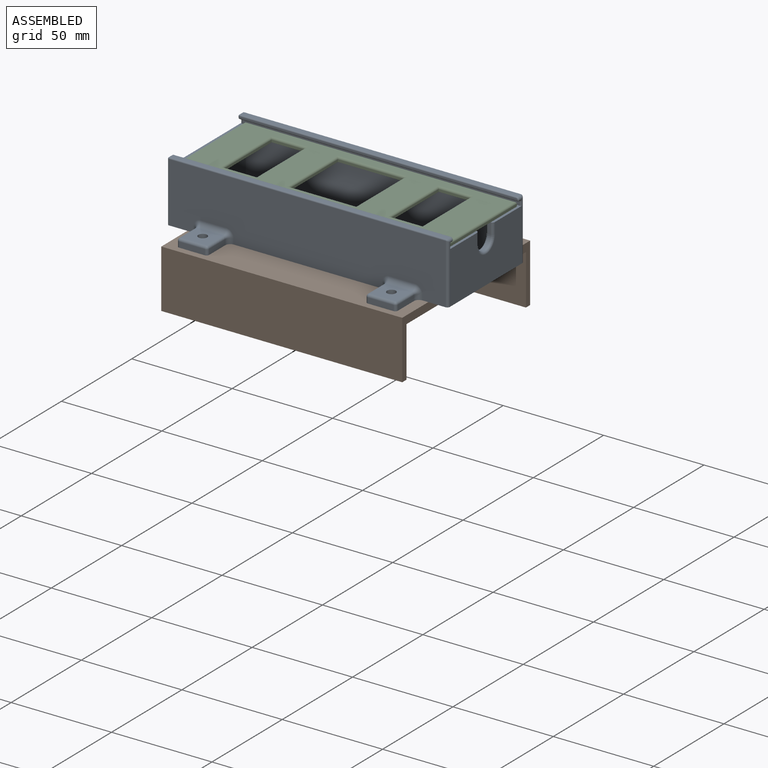
[diagram: assembled view]
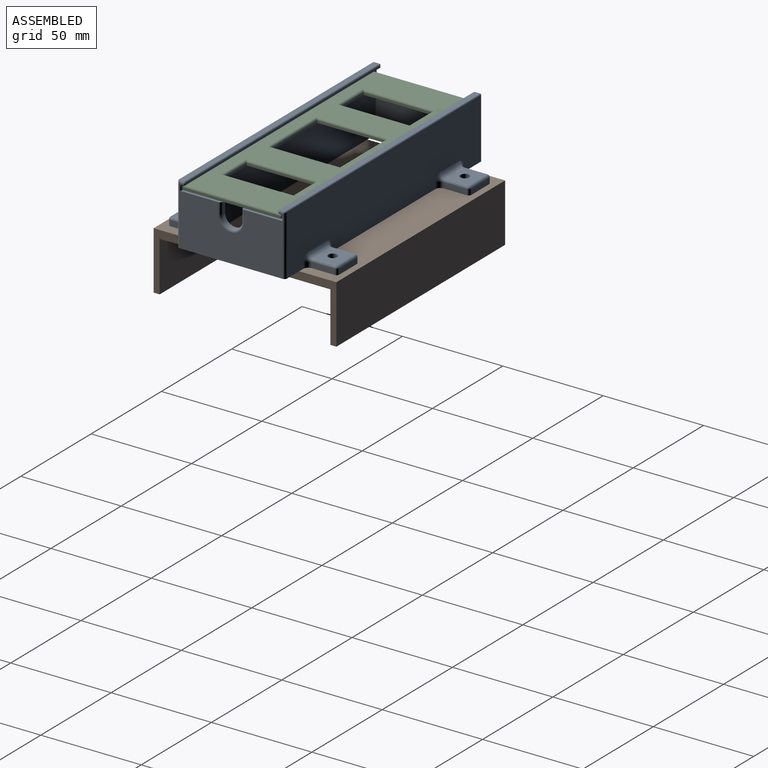
[diagram: assembled view, second angle]
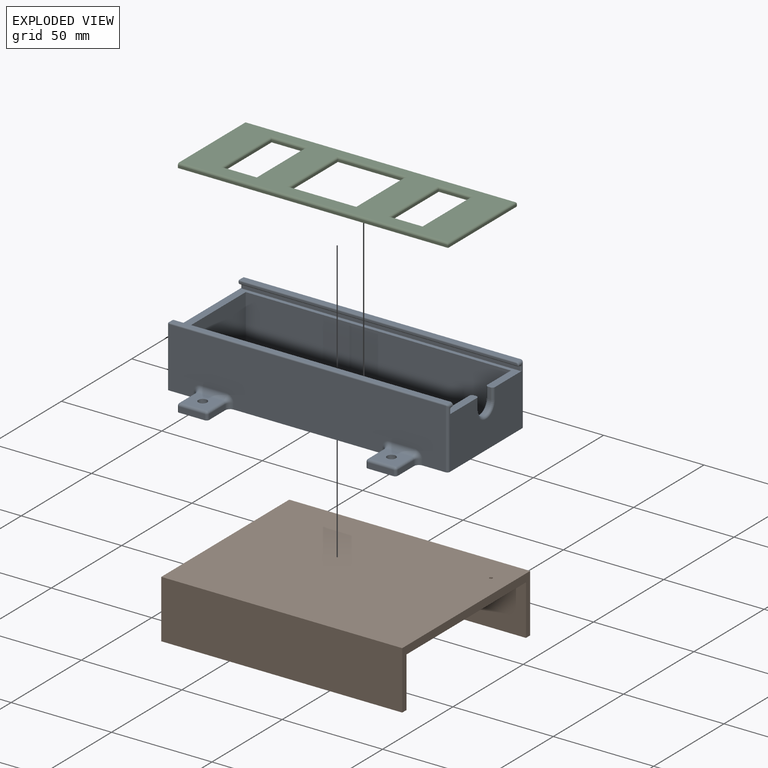
[diagram: exploded view]
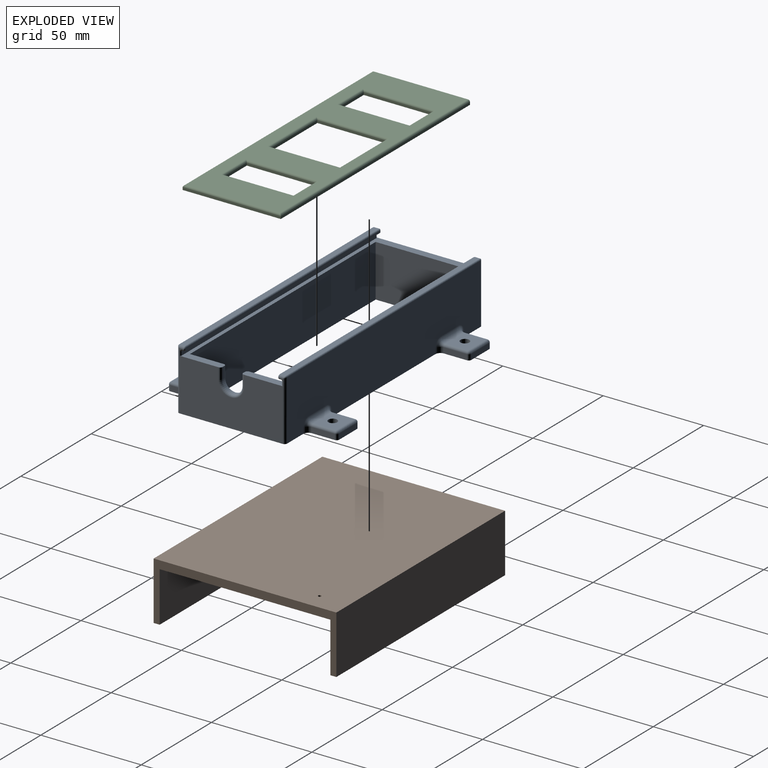
[diagram: exploded view, second angle]
ASSEMBLY  parts=3 mates=3
PART A: 141 faces, bbox 139.8x84.5x30.6 mm
  f0: plane 51.44x25.94mm, normal (1,0,0), area 1199.5mm2, adj f11,f68,f70,f71,f72,f73,f99
  f1: plane 1.91x1.37mm, normal (1,0,0), area 0.5mm2, adj f6,f73,f113,f116,f120
  f2: plane 52.71x29.85mm, normal (-1,0,0), area 1375.6mm2, adj f11,f99,f102,f104,f105,f107,f110,f111
  f3: plane 138.43x0.64mm, normal (0,0,-1), area 87.9mm2, adj f128,f129,f135,f136
  f4: plane 1.91x1.37mm, normal (1,0,0), area 0.5mm2, adj f68,f69,f132,f135,f140
  f5: plane 137.8x2.54mm, normal (0,0,1), area 350mm2, adj f6,f103,f110,f117
  f6: cylinder r=1.27mm len=2.54mm, axis (0,-1,0), area 4.6mm2, adj f1,f5,f101,f119
  f7: plane 138.43x0.73mm, normal (0,-1,0), area 101mm2, adj f130,f136,f137,f139,f140
  f8: plane 138.43x0.73mm, normal (0,1,0), area 101mm2, adj f111,f115,f117,f119,f120
  f9: plane 137.8x29.85mm, normal (0,1,0), area 3861.6mm2, adj f11,f68,f82,f83,f84,f85,f86,f87
  f10: plane 137.8x2.54mm, normal (0,0,1), area 350mm2, adj f69,f124,f131,f137
  f11: plane 139.7x84.46mm, normal (0,0,-1), area 2293mm2, adj f0,f2,f9,f12,f13,f14,f15,f16
  f12: plane 137.8x29.85mm, normal (0,-1,0), area 3861.6mm2, adj f11,f73,f77,f78,f79,f80,f81,f92
  f13: plane 132.08x25.94mm, normal (0,-1,0), area 3426.2mm2, adj f11,f14,f16,f99
  f14: plane 46.36x25.94mm, normal (1,0,0), area 1202.4mm2, adj f11,f13,f15,f99
  f15: plane 132.08x25.94mm, normal (0,1,0), area 3426.2mm2, adj f11,f14,f16,f99
  f16: plane 46.36x25.94mm, normal (-1,0,0), area 1067.7mm2, adj f11,f13,f15,f74,f75,f76,f99
  f17: plane 5.62x1.27mm, normal (0,-1,0), area 7.1mm2, adj f19,f70,f76,f99
  f18: plane 5.62x1.27mm, normal (0,1,0), area 7.1mm2, adj f19,f72,f74,f99
  f19: cylinder r=5.08mm len=10.16mm, axis (1,0,0), area 20.3mm2, adj f17,f18,f71,f75
  f20: plane 12.7x2.73mm, normal (0,1,0), area 34.7mm2, adj f11,f54,f57,f60
  f21: plane 11.47x2.73mm, normal (-1,0,0), area 31.3mm2, adj f11,f58,f60,f82
  f22: cylinder r=2.2mm len=4.4mm, axis (0,0,-1), area 55.3mm2, adj f11,f24
  f23: plane 11.47x2.73mm, normal (1,0,0), area 31.3mm2, adj f11,f54,f55,f84
  f24: plane 12.7x11.47mm, normal (0,0,1), area 130.5mm2, adj f22,f55,f57,f58,f85
  f25: plane 11.47x2.73mm, normal (-1,0,0), area 31.3mm2, adj f11,f51,f53,f87
  f26: plane 11.47x2.73mm, normal (1,0,0), area 31.3mm2, adj f11,f47,f48,f89
  f27: cylinder r=2.2mm len=4.4mm, axis (0,0,-1), area 55.3mm2, adj f11,f29
  f28: plane 12.7x2.73mm, normal (0,1,0), area 34.7mm2, adj f11,f47,f50,f53
  f29: plane 12.7x11.47mm, normal (0,0,1), area 130.5mm2, adj f27,f48,f50,f51,f90
  f30: plane 11.47x2.73mm, normal (-1,0,0), area 31.3mm2, adj f11,f40,f41,f94
  f31: plane 12.7x2.73mm, normal (0,-1,0), area 34.7mm2, adj f11,f40,f43,f46
  f32: plane 11.47x2.73mm, normal (1,0,0), area 31.3mm2, adj f11,f44,f46,f92
  f33: cylinder r=2.2mm len=4.4mm, axis (0,0,-1), area 55.3mm2, adj f11,f34
  f34: plane 12.7x11.47mm, normal (0,0,1), area 130.5mm2, adj f33,f41,f43,f44,f95
  f35: plane 11.47x2.73mm, normal (-1,0,0), area 31.3mm2, adj f11,f61,f62,f79
  f36: plane 12.7x2.73mm, normal (0,-1,0), area 34.7mm2, adj f11,f61,f64,f67
  f37: cylinder r=2.2mm len=4.4mm, axis (0,0,-1), area 55.3mm2, adj f11,f39
  f38: plane 11.47x2.73mm, normal (1,0,0), area 31.3mm2, adj f11,f65,f67,f77
  f39: plane 12.7x11.47mm, normal (0,0,1), area 130.5mm2, adj f37,f62,f64,f65,f80
  f40: cylinder r=1.27mm len=2.73mm, axis (0,0,1), area 5.4mm2, adj f11,f30,f31,f42
  f41: cylinder r=1.27mm len=11.47mm, axis (0,1,0), area 22.9mm2, adj f30,f34,f42,f96
  f42: sphere r=1.27mm, area 2.5mm2, adj f40,f41,f43
  f43: cylinder r=1.27mm len=12.7mm, axis (-1,0,0), area 25.3mm2, adj f31,f34,f42,f45
  f44: cylinder r=1.27mm len=11.47mm, axis (0,-1,0), area 22.9mm2, adj f32,f34,f45,f93
  f45: sphere r=1.27mm, area 2.5mm2, adj f43,f44,f46
  f46: cylinder r=1.27mm len=2.73mm, axis (0,0,-1), area 5.4mm2, adj f11,f31,f32,f45
  f47: cylinder r=1.27mm len=2.73mm, axis (0,0,1), area 5.4mm2, adj f11,f26,f28,f49
  f48: cylinder r=1.27mm len=11.47mm, axis (0,-1,0), area 22.9mm2, adj f26,f29,f49,f91
  f49: sphere r=1.27mm, area 2.5mm2, adj f47,f48,f50
  f50: cylinder r=1.27mm len=12.7mm, axis (1,0,0), area 25.3mm2, adj f28,f29,f49,f52
  f51: cylinder r=1.27mm len=11.47mm, axis (0,1,0), area 22.9mm2, adj f25,f29,f52,f88
  f52: sphere r=1.27mm, area 2.5mm2, adj f50,f51,f53
  f53: cylinder r=1.27mm len=2.73mm, axis (0,0,-1), area 5.4mm2, adj f11,f25,f28,f52
  f54: cylinder r=1.27mm len=2.73mm, axis (0,0,1), area 5.4mm2, adj f11,f20,f23,f56
  f55: cylinder r=1.27mm len=11.47mm, axis (0,-1,0), area 22.9mm2, adj f23,f24,f56,f86
  f56: sphere r=1.27mm, area 2.5mm2, adj f54,f55,f57
  f57: cylinder r=1.27mm len=12.7mm, axis (1,0,0), area 25.3mm2, adj f20,f24,f56,f59
  f58: cylinder r=1.27mm len=11.47mm, axis (0,1,0), area 22.9mm2, adj f21,f24,f59,f83
  f59: sphere r=1.27mm, area 2.5mm2, adj f57,f58,f60
  f60: cylinder r=1.27mm len=2.73mm, axis (0,0,-1), area 5.4mm2, adj f11,f20,f21,f59
  f61: cylinder r=1.27mm len=2.73mm, axis (0,0,1), area 5.4mm2, adj f11,f35,f36,f63
  f62: cylinder r=1.27mm len=11.47mm, axis (0,1,0), area 22.9mm2, adj f35,f39,f63,f81
  f63: sphere r=1.27mm, area 2.5mm2, adj f61,f62,f64
  f64: cylinder r=1.27mm len=12.7mm, axis (-1,0,0), area 25.3mm2, adj f36,f39,f63,f66
  f65: cylinder r=1.27mm len=11.47mm, axis (0,-1,0), area 22.9mm2, adj f38,f39,f66,f78
  f66: sphere r=1.27mm, area 2.5mm2, adj f64,f65,f67
  f67: cylinder r=1.27mm len=2.73mm, axis (0,0,-1), area 5.4mm2, adj f11,f36,f38,f66
  f68: cylinder r=1.27mm len=29.85mm, axis (0,0,1), area 59.1mm2, adj f0,f4,f9,f11,f121,f127
  f69: cylinder r=1.27mm len=2.54mm, axis (0,-1,0), area 4.6mm2, adj f4,f10,f121,f139
  f70: cylinder r=1.27mm len=5.62mm, axis (0,0,-1), area 11.2mm2, adj f0,f17,f71,f99
  f71: torus R=6.35mm, axis (1,0,0), area 34.7mm2, adj f0,f19,f70,f72
  f72: cylinder r=1.27mm len=5.62mm, axis (0,0,1), area 11.2mm2, adj f0,f18,f71,f99
  f73: cylinder r=1.27mm len=29.85mm, axis (0,0,-1), area 59.1mm2, adj f0,f1,f11,f12,f101,f109
  f74: cylinder r=1.27mm len=5.62mm, axis (0,0,-1), area 11.2mm2, adj f16,f18,f75,f99
  f75: torus R=6.35mm, axis (1,0,0), area 34.7mm2, adj f16,f19,f74,f76
  f76: cylinder r=1.27mm len=5.62mm, axis (0,0,1), area 11.2mm2, adj f16,f17,f75,f99
  f77: cylinder r=2.5mm len=2.73mm, axis (0,0,1), area 10.7mm2, adj f11,f12,f38,f78
  f78: torus R=3.77mm, axis (0,-1,0), area 13.4mm2, adj f12,f65,f77,f80
  f79: cylinder r=2.5mm len=2.73mm, axis (0,0,-1), area 10.7mm2, adj f11,f12,f35,f81
  f80: cylinder r=2.5mm len=12.7mm, axis (1,0,0), area 49.9mm2, adj f12,f39,f78,f81
  f81: torus R=3.77mm, axis (0,-1,0), area 13.4mm2, adj f12,f62,f79,f80
  f82: cylinder r=2.5mm len=2.73mm, axis (0,0,1), area 10.7mm2, adj f9,f11,f21,f83
  f83: torus R=3.77mm, axis (0,-1,0), area 13.4mm2, adj f9,f58,f82,f85
  f84: cylinder r=2.5mm len=2.73mm, axis (0,0,-1), area 10.7mm2, adj f9,f11,f23,f86
  f85: cylinder r=2.5mm len=12.7mm, axis (-1,0,0), area 49.9mm2, adj f9,f24,f83,f86
  f86: torus R=3.77mm, axis (0,-1,0), area 13.4mm2, adj f9,f55,f84,f85
  f87: cylinder r=2.5mm len=2.73mm, axis (0,0,-1), area 10.7mm2, adj f9,f11,f25,f88
  f88: torus R=3.77mm, axis (0,-1,0), area 13.4mm2, adj f9,f51,f87,f90
  f89: cylinder r=2.5mm len=2.73mm, axis (0,0,1), area 10.7mm2, adj f9,f11,f26,f91
  f90: cylinder r=2.5mm len=12.7mm, axis (1,0,0), area 49.9mm2, adj f9,f29,f88,f91
  f91: torus R=3.77mm, axis (0,-1,0), area 13.4mm2, adj f9,f48,f89,f90
  f92: cylinder r=2.5mm len=2.73mm, axis (0,0,-1), area 10.7mm2, adj f11,f12,f32,f93
  f93: torus R=3.77mm, axis (0,-1,0), area 13.4mm2, adj f12,f44,f92,f95
  f94: cylinder r=2.5mm len=2.73mm, axis (0,0,1), area 10.7mm2, adj f11,f12,f30,f96
  f95: cylinder r=2.5mm len=12.7mm, axis (-1,0,0), area 49.9mm2, adj f12,f34,f93,f96
  f96: torus R=3.77mm, axis (0,-1,0), area 13.4mm2, adj f12,f41,f94,f95
  f97: plane 138.43x0.64mm, normal (0,0,-1), area 87.9mm2, adj f107,f108,f115,f116
  f98: plane 138.43x1.91mm, normal (0,-1,0), area 263.7mm2, adj f99,f122,f127,f128
  f99: plane 139.7x51.44mm, normal (0,0,1), area 845.7mm2, adj f0,f2,f13,f14,f15,f16,f17,f18
  f100: plane 138.43x1.91mm, normal (0,1,0), area 263.7mm2, adj f99,f102,f108,f109
  f101: bspline ~1.52x1.27mm, area 1.3mm2, adj f6,f73,f103
  f102: cylinder r=0.64mm len=1.91mm, axis (0,0,1), area 1.9mm2, adj f2,f99,f100,f105
  f103: cylinder r=0.64mm len=137.8mm, axis (-1,0,0), area 137.4mm2, adj f5,f12,f101,f106
  f104: cylinder r=0.64mm len=29.85mm, axis (0,0,1), area 29.8mm2, adj f2,f11,f12,f106
  f105: torus R=1.27mm, axis (1,0,0), area 1.4mm2, adj f2,f102,f107,f108
  f106: sphere r=0.64mm, area 0.6mm2, adj f103,f104,f110
  f107: cylinder r=0.64mm len=0.64mm, axis (0,1,0), area 0.6mm2, adj f2,f97,f105,f112
  f108: cylinder r=0.64mm len=138.43mm, axis (1,0,0), area 138.1mm2, adj f97,f100,f105,f113
  f109: cylinder r=0.64mm len=1.91mm, axis (0,0,1), area 1.9mm2, adj f73,f99,f100,f113
  f110: cylinder r=0.64mm len=2.54mm, axis (0,1,0), area 2.5mm2, adj f2,f5,f106,f114
  f111: cylinder r=0.64mm len=0.73mm, axis (0,0,-1), area 0.7mm2, adj f2,f8,f112,f114
  f112: sphere r=0.64mm, area 0.6mm2, adj f107,f111,f115
  f113: torus R=1.27mm, axis (1,0,0), area 1.4mm2, adj f1,f108,f109,f116
  f114: sphere r=0.64mm, area 0.6mm2, adj f110,f111,f117
  f115: cylinder r=0.64mm len=138.43mm, axis (-1,0,0), area 138.1mm2, adj f8,f97,f112,f118
  f116: cylinder r=0.64mm len=0.64mm, axis (0,1,0), area 0.6mm2, adj f1,f97,f113,f118
  f117: cylinder r=0.64mm len=137.8mm, axis (-1,0,0), area 137.4mm2, adj f5,f8,f114,f119
  f118: sphere r=0.64mm, area 0.6mm2, adj f115,f116,f120
  f119: torus R=0.64mm, axis (0,-1,0), area 1.6mm2, adj f6,f8,f117,f120
  f120: cylinder r=0.64mm len=0.64mm, axis (0,0,-1), area 0.1mm2, adj f1,f8,f118,f119
  f121: bspline ~1.33x1.27mm, area 1.3mm2, adj f68,f69,f124
  f122: cylinder r=0.64mm len=1.91mm, axis (0,0,-1), area 1.9mm2, adj f2,f98,f99,f125
  f123: cylinder r=0.64mm len=29.85mm, axis (0,0,-1), area 29.8mm2, adj f2,f9,f11,f126
  f124: cylinder r=0.64mm len=137.8mm, axis (1,0,0), area 137.4mm2, adj f9,f10,f121,f126
  f125: torus R=1.27mm, axis (1,0,0), area 1.4mm2, adj f2,f122,f128,f129
  f126: sphere r=0.64mm, area 0.6mm2, adj f123,f124,f131
  f127: cylinder r=0.64mm len=1.91mm, axis (0,0,-1), area 1.9mm2, adj f68,f98,f99,f132
  f128: cylinder r=0.64mm len=138.43mm, axis (-1,0,0), area 138.1mm2, adj f3,f98,f125,f132
  f129: cylinder r=0.64mm len=0.64mm, axis (0,1,0), area 0.6mm2, adj f2,f3,f125,f133
  f130: cylinder r=0.64mm len=0.73mm, axis (0,0,1), area 0.7mm2, adj f2,f7,f133,f134
  f131: cylinder r=0.64mm len=2.54mm, axis (0,1,0), area 2.5mm2, adj f2,f10,f126,f134
  f132: torus R=1.27mm, axis (1,0,0), area 1.4mm2, adj f4,f127,f128,f135
  f133: sphere r=0.64mm, area 0.6mm2, adj f129,f130,f136
  f134: sphere r=0.64mm, area 0.6mm2, adj f130,f131,f137
  f135: cylinder r=0.64mm len=0.64mm, axis (0,1,0), area 0.6mm2, adj f3,f4,f132,f138
  f136: cylinder r=0.64mm len=138.43mm, axis (1,0,0), area 138.1mm2, adj f3,f7,f133,f138
  f137: cylinder r=0.64mm len=137.8mm, axis (1,0,0), area 137.4mm2, adj f7,f10,f134,f139
  f138: sphere r=0.64mm, area 0.6mm2, adj f135,f136,f140
  f139: torus R=0.64mm, axis (0,-1,0), area 1.6mm2, adj f7,f69,f137,f140
  f140: cylinder r=0.64mm len=0.64mm, axis (0,0,1), area 0.1mm2, adj f4,f7,f138,f139
PART B: 39 faces, bbox 91x120x29 mm
  f0: plane 117x85mm, normal (0,0,-1), area 9923.2mm2, adj f1,f2,f4,f5,f6,f13,f14,f15
  f1: plane 3x2mm, normal (0,1,0), area 6mm2, adj f0,f4,f6,f8
  f2: plane 91x29mm, normal (0,-1,0), area 514mm2, adj f0,f3,f23,f24,f25,f26,f27
  f3: plane 120x91mm, normal (0,0,1), area 10918.2mm2, adj f2,f23,f24,f29,f38
  f4: plane 10x7mm, normal (1,0,0), area 53.7mm2, adj f0,f1,f5,f7,f8,f9,f10,f11
  f5: plane 5x2mm, normal (0,-1,0), area 10mm2, adj f0,f4,f6,f12
  f6: plane 10x7mm, normal (-1,0,0), area 53.7mm2, adj f0,f1,f5,f7,f8,f9,f10,f11
  f7: plane 7x2mm, normal (0,0,-1), area 14mm2, adj f4,f6,f11,f12
  f8: plane 4x2mm, normal (0,0,1), area 8mm2, adj f1,f4,f6,f10
  f9: plane 2x2mm, normal (0,1,0), area 4mm2, adj f4,f6,f10,f11
  f10: cylinder r=1mm len=2mm, axis (-1,0,0), area 3.1mm2, adj f4,f6,f8,f9
  f11: cylinder r=1mm len=2mm, axis (-1,0,0), area 3.1mm2, adj f4,f6,f7,f9
  f12: cylinder r=2mm len=2mm, axis (1,0,0), area 6.3mm2, adj f4,f5,f6,f7
  f13: plane 3x2mm, normal (0,1,0), area 6mm2, adj f0,f14,f16,f18
  f14: plane 10x7mm, normal (-1,0,0), area 53.7mm2, adj f0,f13,f15,f17,f18,f19,f20,f21
  f15: plane 5x2mm, normal (0,-1,0), area 10mm2, adj f0,f14,f16,f22
  f16: plane 10x7mm, normal (1,0,0), area 53.7mm2, adj f0,f13,f15,f17,f18,f19,f20,f21
  f17: plane 7x2mm, normal (0,0,-1), area 14mm2, adj f14,f16,f21,f22
  f18: plane 4x2mm, normal (0,0,1), area 8mm2, adj f13,f14,f16,f20
  f19: plane 2x2mm, normal (0,1,0), area 4mm2, adj f14,f16,f20,f21
  f20: cylinder r=1mm len=2mm, axis (1,0,0), area 3.1mm2, adj f14,f16,f18,f19
  f21: cylinder r=1mm len=2mm, axis (1,0,0), area 3.1mm2, adj f14,f16,f17,f19
  f22: cylinder r=2mm len=2mm, axis (-1,0,0), area 6.3mm2, adj f14,f15,f16,f17
  f23: plane 120x29mm, normal (-1,0,0), area 3480mm2, adj f2,f3,f26,f29
  f24: plane 120x29mm, normal (1,0,0), area 3480mm2, adj f2,f3,f26,f29
  f25: plane 117x25mm, normal (-1,0,0), area 2925mm2, adj f0,f2,f26,f28
  f26: plane 120x91mm, normal (0,0,-1), area 975mm2, adj f2,f23,f24,f25,f27,f28,f29
  f27: plane 117x25mm, normal (1,0,0), area 2925mm2, adj f0,f2,f26,f28
  f28: plane 85x25mm, normal (0,-1,0), area 2038mm2, adj f0,f25,f26,f27,f30,f31,f32,f33
  f29: plane 91x29mm, normal (0,1,0), area 2552mm2, adj f3,f23,f24,f26,f30,f31,f32,f33
  f30: plane 3x3mm, normal (-1,0,0), area 9mm2, adj f28,f29,f31,f37
  f31: plane 3x3mm, normal (0,0,1), area 9mm2, adj f28,f29,f30,f32
  f32: plane 3x3mm, normal (1,0,0), area 9mm2, adj f28,f29,f31,f33
  f33: plane 5.26x3mm, normal (0,0,1), area 15.8mm2, adj f28,f29,f32,f34
  f34: plane 6x3mm, normal (1,0,0), area 18mm2, adj f28,f29,f33,f35
  f35: plane 13x3mm, normal (0,0,-1), area 39mm2, adj f28,f29,f34,f36
  f36: plane 6x3mm, normal (-1,0,0), area 18mm2, adj f28,f29,f35,f37
  f37: plane 4.74x3mm, normal (0,0,1), area 14.2mm2, adj f28,f29,f30,f36
  f38: cylinder r=0.75mm len=4mm, axis (0,0,1), area 18.8mm2, adj f0,f3
PART C: 33 faces, bbox 134.6x48.9x2.2 mm
  f0: plane 33.02x1.14mm, normal (0,1,0), area 37.7mm2, adj f1,f15,f17,f18
  f1: plane 34.29x1.14mm, normal (1,0,0), area 39.2mm2, adj f0,f2,f17,f19
  f2: plane 33.02x1.14mm, normal (0,-1,0), area 37.7mm2, adj f1,f15,f17,f21
  f3: plane 134.62x1.14mm, normal (0,1,0), area 153.9mm2, adj f4,f12,f17,f22
  f4: plane 48.9x2.16mm, normal (-1,0,0), area 105.1mm2, adj f3,f5,f16,f17,f22,f23
  f5: plane 134.62x1.14mm, normal (0,-1,0), area 153.9mm2, adj f4,f12,f17,f23
  f6: plane 34.29x1.14mm, normal (-1,0,0), area 39.2mm2, adj f7,f13,f17,f27
  f7: plane 15.88x1.14mm, normal (0,1,0), area 18.1mm2, adj f6,f8,f17,f25
  f8: plane 34.29x1.14mm, normal (1,0,0), area 39.2mm2, adj f7,f13,f17,f26
  f9: plane 34.29x1.14mm, normal (1,0,0), area 39.2mm2, adj f10,f14,f17,f30
  f10: plane 16.51x1.14mm, normal (0,-1,0), area 18.9mm2, adj f9,f11,f17,f29
  f11: plane 34.29x1.14mm, normal (-1,0,0), area 39.2mm2, adj f10,f14,f17,f31
  f12: plane 48.9x1.14mm, normal (1,0,0), area 55.9mm2, adj f3,f5,f17,f24
  f13: plane 15.88x1.14mm, normal (0,-1,0), area 18.1mm2, adj f6,f8,f17,f28
  f14: plane 16.51x1.14mm, normal (0,1,0), area 18.9mm2, adj f9,f11,f17,f32
  f15: plane 34.29x1.14mm, normal (-1,0,0), area 39.2mm2, adj f0,f2,f17,f20
  f16: plane 133.6x46.86mm, normal (0,0,1), area 3664mm2, adj f4,f18,f19,f20,f21,f22,f23,f24
  f17: plane 134.62x48.9mm, normal (0,0,-1), area 4339.5mm2, adj f0,f1,f2,f3,f4,f5,f6,f7
  f18: cylinder r=1.02mm len=35.05mm, axis (1,0,0), area 53.9mm2, adj f0,f16,f19,f20
  f19: cylinder r=1.02mm len=36.32mm, axis (0,-1,0), area 55.9mm2, adj f1,f16,f18,f21
  f20: cylinder r=1.02mm len=36.32mm, axis (0,1,0), area 55.9mm2, adj f15,f16,f18,f21
  f21: cylinder r=1.02mm len=35.05mm, axis (-1,0,0), area 53.9mm2, adj f2,f16,f19,f20
  f22: cylinder r=1.02mm len=134.62mm, axis (1,0,0), area 214.3mm2, adj f3,f4,f16,f24
  f23: cylinder r=1.02mm len=134.62mm, axis (-1,0,0), area 214.3mm2, adj f4,f5,f16,f24
  f24: cylinder r=1.02mm len=48.9mm, axis (0,-1,0), area 76.9mm2, adj f12,f16,f22,f23
  f25: cylinder r=1.02mm len=17.91mm, axis (1,0,0), area 26.5mm2, adj f7,f16,f26,f27
  f26: cylinder r=1.02mm len=36.32mm, axis (0,-1,0), area 55.9mm2, adj f8,f16,f25,f28
  f27: cylinder r=1.02mm len=36.32mm, axis (0,1,0), area 55.9mm2, adj f6,f16,f25,f28
  f28: cylinder r=1.02mm len=17.91mm, axis (-1,0,0), area 26.5mm2, adj f13,f16,f26,f27
  f29: cylinder r=1.02mm len=18.54mm, axis (-1,0,0), area 27.5mm2, adj f10,f16,f30,f31
  f30: cylinder r=1.02mm len=36.32mm, axis (0,-1,0), area 55.9mm2, adj f9,f16,f29,f32
  f31: cylinder r=1.02mm len=36.32mm, axis (0,1,0), area 55.9mm2, adj f11,f16,f29,f32
  f32: cylinder r=1.02mm len=18.54mm, axis (1,0,0), area 27.5mm2, adj f14,f16,f30,f31
PLACE A t=(79.56,24.39,-69.36)mm fixed
PLACE B rot(axis=(0,0,1),90deg) t=(81.05,24.4,-73.36)mm
PLACE C t=(80.81,23.76,-43.42)mm
MATE planar C.f5 <-> A.f100  axis (0,-1,0) through (80.81,-0.69,-42.85)mm
MATE fastened A.f11 <-> B.f3  axis (0,0,-1) through (79.54,24.39,-69.36)mm
MATE planar C.f17 <-> A.f99  axis (0,0,-1) through (96.68,24.39,-43.42)mm
